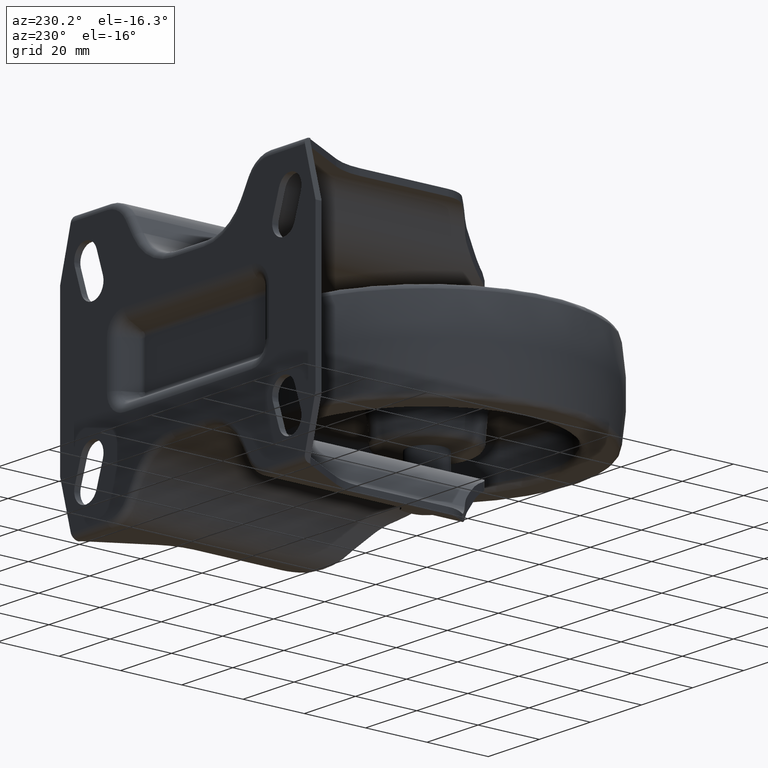
[diagram: clean part render]
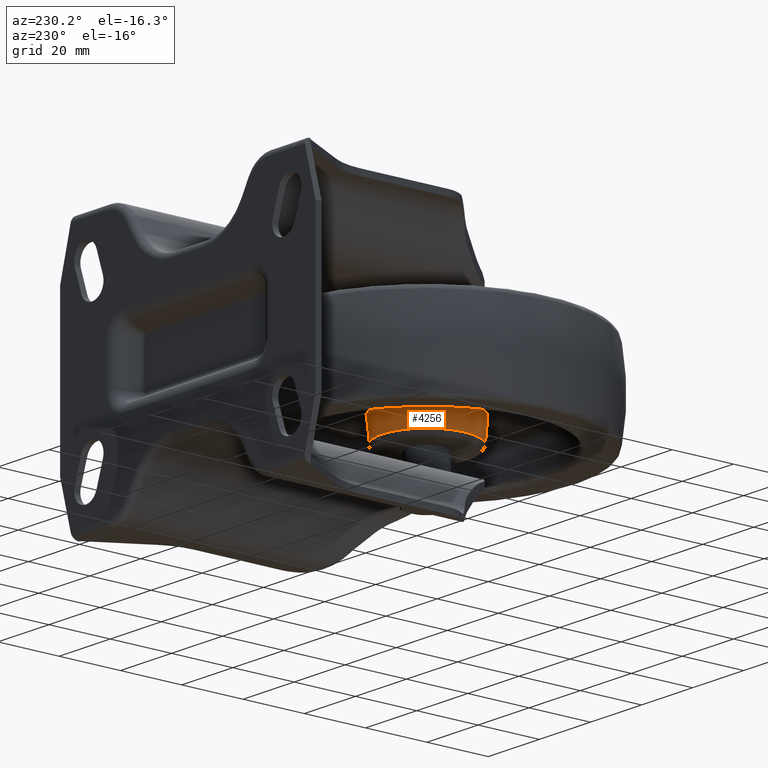
[diagram: same view with one face highlighted and labeled with its STEP entity id]
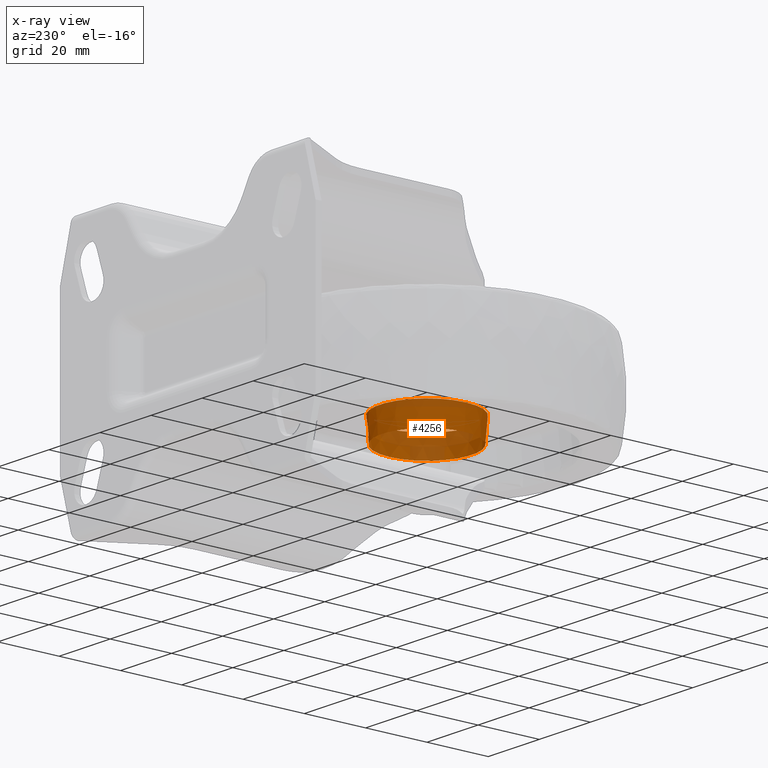
[diagram: x-ray of the same camera — body ghosted, the highlighted face saturated]
A machine part, auxiliary view. The second image highlights one B-rep face of the part: STEP entity #4256.
The next image is the same camera in x-ray: the body ghosted, the highlighted face saturated — about 37% of this face is hidden behind the body in this view.
In plain terms, the highlighted conical surface has half-angle 5 deg.
Its self-contained STEP definition (entity closure, byte-faithful):
#186=CONICAL_SURFACE('',#4728,14.989258292807,0.0872664625997165);
#528=FACE_OUTER_BOUND('',#787,.T.);
#787=EDGE_LOOP('',(#3621,#3622,#3623,#3624,#3625,#3626));
#1071=LINE('',#7449,#1337);
#1337=VECTOR('',#5912,14.989258292807);
#1516=CIRCLE('',#4726,14.6597270481486);
#1517=CIRCLE('',#4727,14.6597270481486);
#1518=CIRCLE('',#4729,15.3187895374654);
#1519=CIRCLE('',#4730,15.3187895374654);
#1897=VERTEX_POINT('',#7439);
#1898=VERTEX_POINT('',#7441);
#1899=VERTEX_POINT('',#7445);
#1900=VERTEX_POINT('',#7446);
#2477=EDGE_CURVE('',#1897,#1898,#1516,.T.);
#2478=EDGE_CURVE('',#1898,#1897,#1517,.T.);
#2479=EDGE_CURVE('',#1899,#1900,#1518,.T.);
#2480=EDGE_CURVE('',#1900,#1899,#1519,.T.);
#2481=EDGE_CURVE('',#1899,#1898,#1071,.T.);
#3621=ORIENTED_EDGE('',*,*,#2479,.T.);
#3622=ORIENTED_EDGE('',*,*,#2480,.T.);
#3623=ORIENTED_EDGE('',*,*,#2481,.T.);
#3624=ORIENTED_EDGE('',*,*,#2477,.F.);
#3625=ORIENTED_EDGE('',*,*,#2478,.F.);
#3626=ORIENTED_EDGE('',*,*,#2481,.F.);
#4256=ADVANCED_FACE('',(#528),#186,.T.);
#4726=AXIS2_PLACEMENT_3D('',#7442,#5902,#5903);
#4727=AXIS2_PLACEMENT_3D('',#7443,#5904,#5905);
#4728=AXIS2_PLACEMENT_3D('',#7444,#5906,#5907);
#4729=AXIS2_PLACEMENT_3D('',#7447,#5908,#5909);
#4730=AXIS2_PLACEMENT_3D('',#7448,#5910,#5911);
#5902=DIRECTION('center_axis',(0.,0.,-1.));
#5903=DIRECTION('ref_axis',(1.,0.,0.));
#5904=DIRECTION('center_axis',(0.,0.,-1.));
#5905=DIRECTION('ref_axis',(1.,0.,0.));
#5906=DIRECTION('center_axis',(0.,0.,1.));
#5907=DIRECTION('ref_axis',(1.,0.,0.));
#5908=DIRECTION('center_axis',(0.,0.,-1.));
#5909=DIRECTION('ref_axis',(1.,0.,0.));
#5910=DIRECTION('center_axis',(0.,0.,-1.));
#5911=DIRECTION('ref_axis',(1.,0.,0.));
#5912=DIRECTION('',(0.0871557427476582,1.0673500138323E-17,-0.996194698091746));
#7439=CARTESIAN_POINT('',(14.6597270481486,-3.59047897769292E-15,-13.1743114854953));
#7441=CARTESIAN_POINT('',(-14.6597270481486,-1.79529878058891E-15,-13.1743114854953));
#7442=CARTESIAN_POINT('Origin',(0.,0.,-13.1743114854953));
#7443=CARTESIAN_POINT('Origin',(0.,0.,-13.1743114854953));
#7444=CARTESIAN_POINT('Origin',(0.,0.,-9.40775212365597));
#7445=CARTESIAN_POINT('',(-15.3187895374654,-1.87594870004479E-15,-5.64119276181663));
#7446=CARTESIAN_POINT('',(15.3187895374654,-1.8760106573869E-15,-5.64119276181663));
#7447=CARTESIAN_POINT('Origin',(0.,0.,-5.64119276181663));
#7448=CARTESIAN_POINT('Origin',(0.,0.,-5.64119276181663));
#7449=CARTESIAN_POINT('',(-14.989258292807,-1.8356547189879E-15,-9.40775212365597));